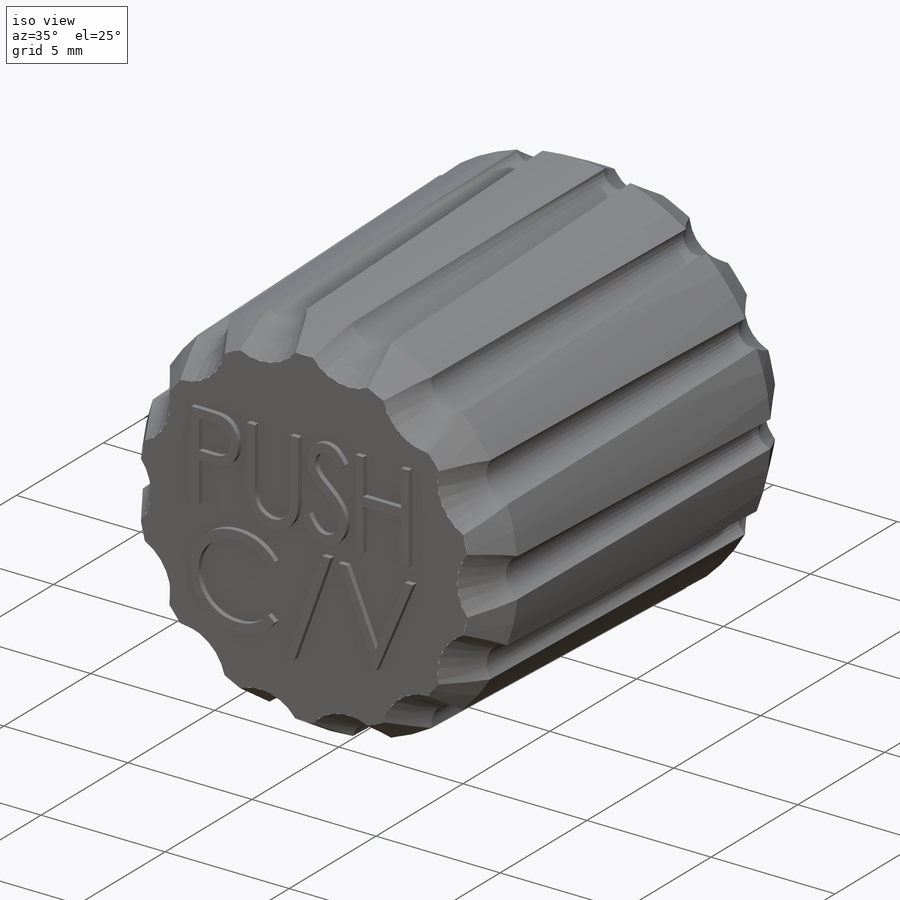
[diagram: iso view]
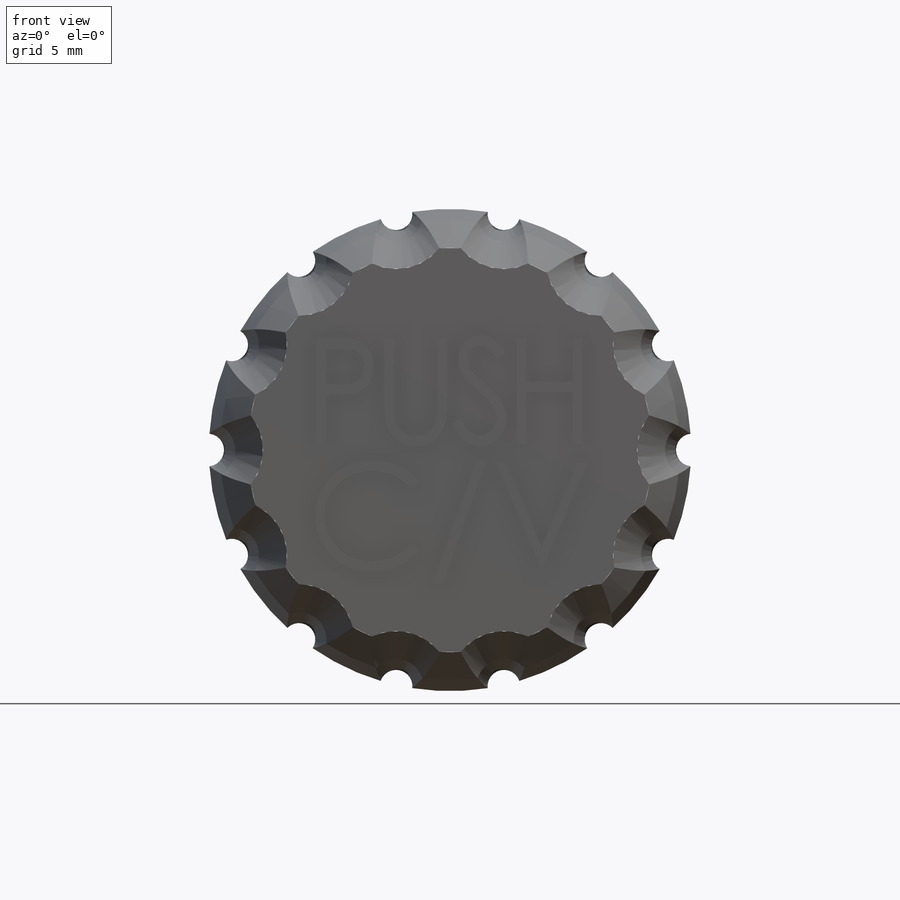
[diagram: front view]
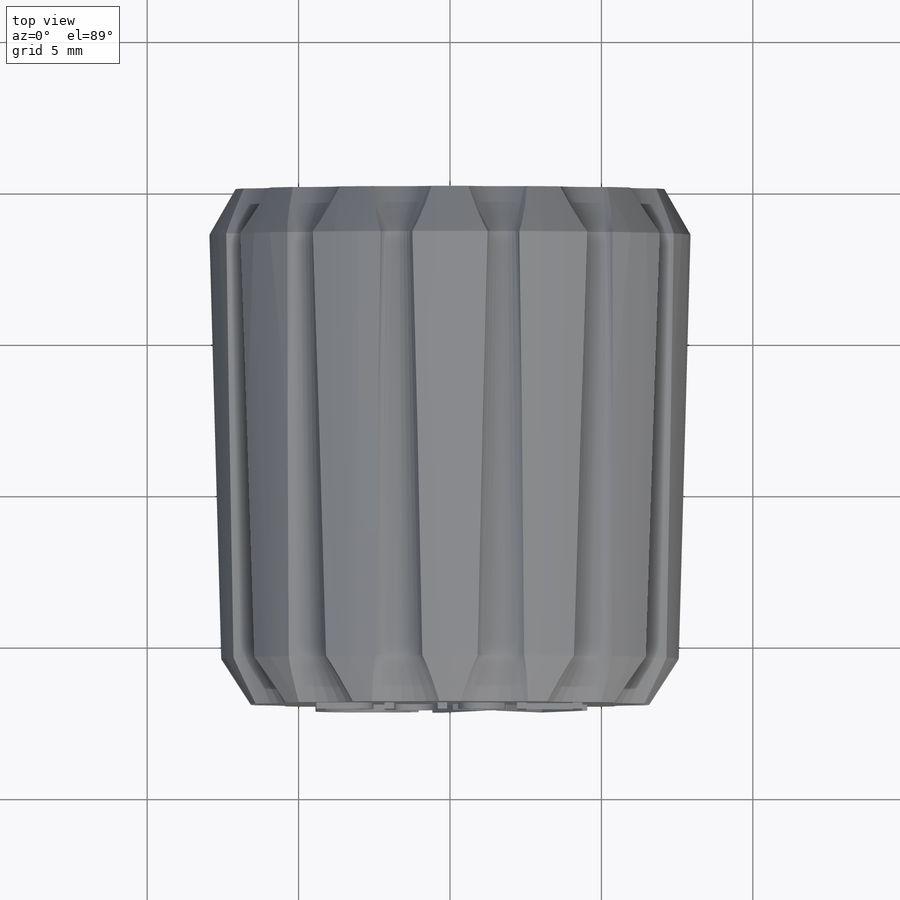
[diagram: top view]
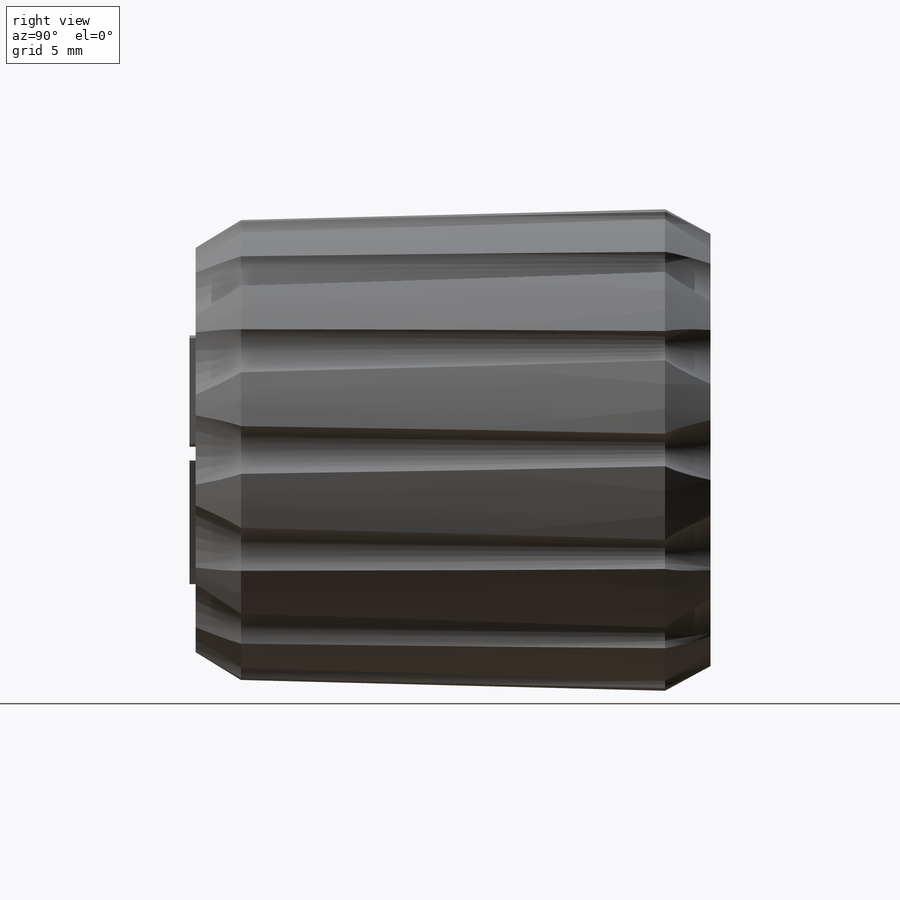
[diagram: right view]
SOLIDWORKS PART (.sldprt)
format: sldprt  version: not decoded by parser v0  size: 634,880 bytes
history: native  units: mm
features: sketch x6, cut_extrude x4, plane x3, chamfer x3, extrude x2, material x1 (+10 scaffold rows collapsed)
feature tree (29):
  scaffold x10  (default folders/planes/origin — collapsed)
  material  "Matériau <non spécifié>"
  plane  "Plan de face"
  plane  "Plan de dessus"
  plane  "Plan de droite"
  sketch  "Esquisse1"  dims[D1=16.0mm D2=1.0mm D3=14.0]
  extrude  "Boss.-Extru.1"  Depth=17mm
  chamfer  "Chanfrein1"  Distance=1.5mm Angle=30deg
  chamfer  "Chanfrein2"  Distance=1.5mm Angle=30deg
  sketch  "Esquisse2"  dims[D1=3.8mm D2=0.7mm]
  cut_extrude  "Enlèv. mat.-Extru.1"  Depth=9.5mm
  cut_extrude  "Enlèv. mat.-Extru.2"  [1 undecoded]
  sketch  "Esquisse2<3>"  dims[D1=3.0mm]
  chamfer  "Chanfrein3"  Distance=0.4mm Angle=45deg
  sketch  "Esquisse4"  dims[D1=0.4mm D2=0.4mm]
  cut_extrude  "Enlèv. mat.-Extru.4"  Depth=10mm
  sketch  "Esquisse5"
  cut_extrude  "Enlèv. mat.-Extru.5"  Depth=0.2mm
  extrude  "Boss.-Extru.2"  [1 undecoded]
  sketch  "Esquisse5<2>"  dims[D1=0.2mm]
decode coverage: 12 of 15 modeling features carry decoded parameters
note: 2 parameter values undecoded
note: suppression state not decoded; provenance and decode notes live in map.json
